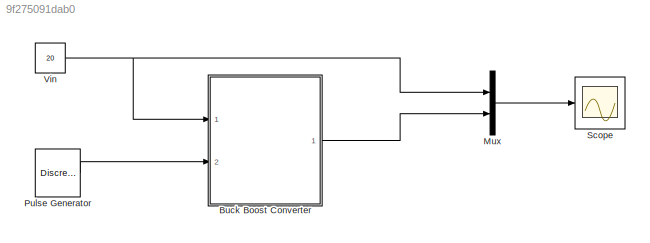
MODEL slx_9f275091dab0
KIND model
CONFIG AbsTol = auto
CONFIG FixedStep = auto
CONFIG MaxStep = auto
CONFIG MinStep = auto
CONFIG RelTol = 1e-3
CONFIG SampleTimeConstraint = Unconstrained
CONFIG Solver = ode45
CONFIG SolverMode = Auto
CONFIG SolverName = ode45
CONFIG StartTime = 0.0
CONFIG StopTime = 2
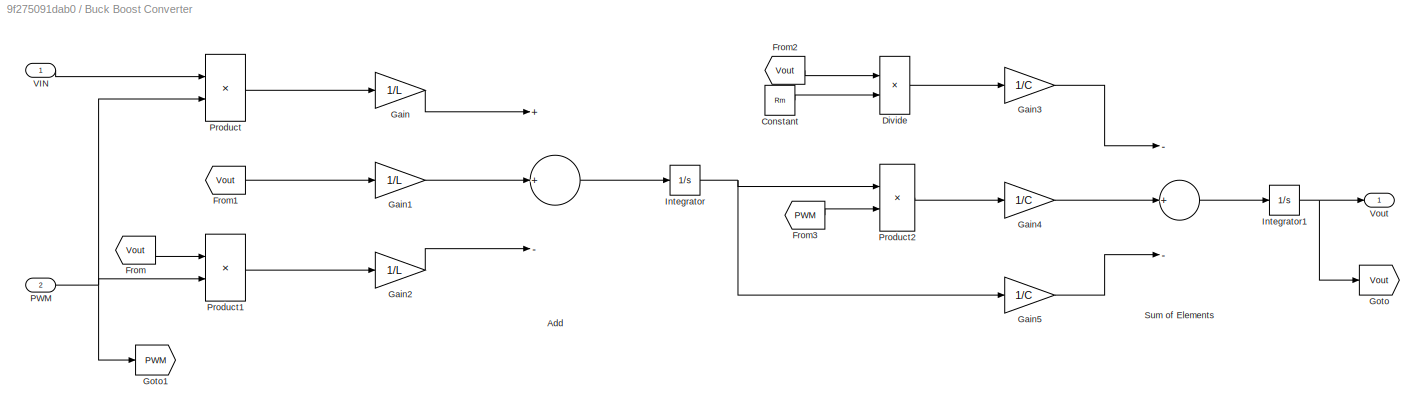
BLOCK [SubSystem] Buck Boost Converter
  Ports = [2, 1]
  RequestExecContextInheritance = off
BLOCK [Sum] Buck Boost Converter/Add
  InputSameDT = off
  Inputs = ++-
  OutDataTypeStr = Inherit: Inherit via internal rule
  Ports = [3, 1]
  SaturateOnIntegerOverflow = off
BLOCK [Constant] Buck Boost Converter/Constant
  Value = Rm
BLOCK [Product] Buck Boost Converter/Divide
  InputSameDT = off
  Inputs = */
  OutDataTypeStr = Inherit: Inherit via internal rule
  Ports = [2, 1]
  RndMeth = Floor
  SaturateOnIntegerOverflow = off
BLOCK [From] Buck Boost Converter/From
  GotoTag = Vout
BLOCK [From] Buck Boost Converter/From1
  GotoTag = Vout
BLOCK [From] Buck Boost Converter/From2
  GotoTag = Vout
BLOCK [From] Buck Boost Converter/From3
  GotoTag = PWM
BLOCK [Gain] Buck Boost Converter/Gain
  Gain = 1/L
  OutDataTypeStr = Inherit: Inherit via internal rule
  ParamDataTypeStr = Inherit: Inherit via internal rule
  SaturateOnIntegerOverflow = off
BLOCK [Gain] Buck Boost Converter/Gain1
  Gain = 1/L
  OutDataTypeStr = Inherit: Inherit via internal rule
  ParamDataTypeStr = Inherit: Inherit via internal rule
  SaturateOnIntegerOverflow = off
BLOCK [Gain] Buck Boost Converter/Gain2
  Gain = 1/L
  OutDataTypeStr = Inherit: Inherit via internal rule
  ParamDataTypeStr = Inherit: Inherit via internal rule
  SaturateOnIntegerOverflow = off
BLOCK [Gain] Buck Boost Converter/Gain3
  Gain = 1/C
  OutDataTypeStr = Inherit: Inherit via internal rule
  ParamDataTypeStr = Inherit: Inherit via internal rule
  SaturateOnIntegerOverflow = off
BLOCK [Gain] Buck Boost Converter/Gain4
  Gain = 1/C
  OutDataTypeStr = Inherit: Inherit via internal rule
  ParamDataTypeStr = Inherit: Inherit via internal rule
  SaturateOnIntegerOverflow = off
BLOCK [Gain] Buck Boost Converter/Gain5
  Gain = 1/C
  OutDataTypeStr = Inherit: Inherit via internal rule
  ParamDataTypeStr = Inherit: Inherit via internal rule
  SaturateOnIntegerOverflow = off
BLOCK [Goto] Buck Boost Converter/Goto
  GotoTag = Vout
BLOCK [Goto] Buck Boost Converter/Goto1
  GotoTag = PWM
BLOCK [Integrator] Buck Boost Converter/Integrator
  Ports = [1, 1]
BLOCK [Integrator] Buck Boost Converter/Integrator1
  Ports = [1, 1]
BLOCK [Inport] Buck Boost Converter/PWM
  IconDisplay = Port number
  Port = 2
BLOCK [Product] Buck Boost Converter/Product
  InputSameDT = off
  OutDataTypeStr = Inherit: Inherit via internal rule
  Ports = [2, 1]
  RndMeth = Floor
  SaturateOnIntegerOverflow = off
BLOCK [Product] Buck Boost Converter/Product1
  InputSameDT = off
  OutDataTypeStr = Inherit: Inherit via internal rule
  Ports = [2, 1]
  RndMeth = Floor
  SaturateOnIntegerOverflow = off
BLOCK [Product] Buck Boost Converter/Product2
  InputSameDT = off
  OutDataTypeStr = Inherit: Inherit via internal rule
  Ports = [2, 1]
  RndMeth = Floor
  SaturateOnIntegerOverflow = off
BLOCK [Sum] Buck Boost Converter/Sum of Elements
  InputSameDT = off
  Inputs = -+-
  OutDataTypeStr = Inherit: Inherit via internal rule
  Ports = [3, 1]
  SaturateOnIntegerOverflow = off
BLOCK [Inport] Buck Boost Converter/VIN
  IconDisplay = Port number
BLOCK [Outport] Buck Boost Converter/Vout
  IconDisplay = Port number
BLOCK [Mux] Mux
  DisplayOption = bar
  Inputs = 2
  Ports = [2, 1]
BLOCK [DiscretePulseGenerator] Pulse Generator
  Period = 1/fs
  Ports = [0, 1]
  PulseType = Time based
  PulseWidth = 0.3*100
BLOCK [Scope] Scope
  Floating = off
  LimitDataPoints = off
  NumInputPorts = 1
  Ports = [1]
BLOCK [Constant] Vin
  Value = 20
LINE Buck Boost Converter/Add:1 -> Buck Boost Converter/Integrator:1
LINE Buck Boost Converter/Constant:1 -> Buck Boost Converter/Divide:2
LINE Buck Boost Converter/Divide:1 -> Buck Boost Converter/Gain3:1
LINE Buck Boost Converter/From1:1 -> Buck Boost Converter/Gain1:1
LINE Buck Boost Converter/From2:1 -> Buck Boost Converter/Divide:1
LINE Buck Boost Converter/From3:1 -> Buck Boost Converter/Product2:2
LINE Buck Boost Converter/From:1 -> Buck Boost Converter/Product1:1
LINE Buck Boost Converter/Gain1:1 -> Buck Boost Converter/Add:2
LINE Buck Boost Converter/Gain2:1 -> Buck Boost Converter/Add:3
LINE Buck Boost Converter/Gain3:1 -> Buck Boost Converter/Sum of Elements:1
LINE Buck Boost Converter/Gain4:1 -> Buck Boost Converter/Sum of Elements:2
LINE Buck Boost Converter/Gain5:1 -> Buck Boost Converter/Sum of Elements:3
LINE Buck Boost Converter/Gain:1 -> Buck Boost Converter/Add:1
NET Buck Boost Converter/Integrator1:1 -> Buck Boost Converter/Goto:1, Buck Boost Converter/Vout:1
NET Buck Boost Converter/Integrator:1 -> Buck Boost Converter/Gain5:1, Buck Boost Converter/Product2:1
NET Buck Boost Converter/PWM:1 -> Buck Boost Converter/Goto1:1, Buck Boost Converter/Product1:2, Buck Boost Converter/Product:2
LINE Buck Boost Converter/Product1:1 -> Buck Boost Converter/Gain2:1
LINE Buck Boost Converter/Product2:1 -> Buck Boost Converter/Gain4:1
LINE Buck Boost Converter/Product:1 -> Buck Boost Converter/Gain:1
LINE Buck Boost Converter/Sum of Elements:1 -> Buck Boost Converter/Integrator1:1
LINE Buck Boost Converter/VIN:1 -> Buck Boost Converter/Product:1
LINE Buck Boost Converter:1 -> Mux:2
LINE Mux:1 -> Scope:1
LINE Pulse Generator:1 -> Buck Boost Converter:2
NET Vin:1 -> Buck Boost Converter:1, Mux:1
note: NET lines group one-source signal fan-out (src -> all destinations, sorted); 1:1 wires keep LINE
